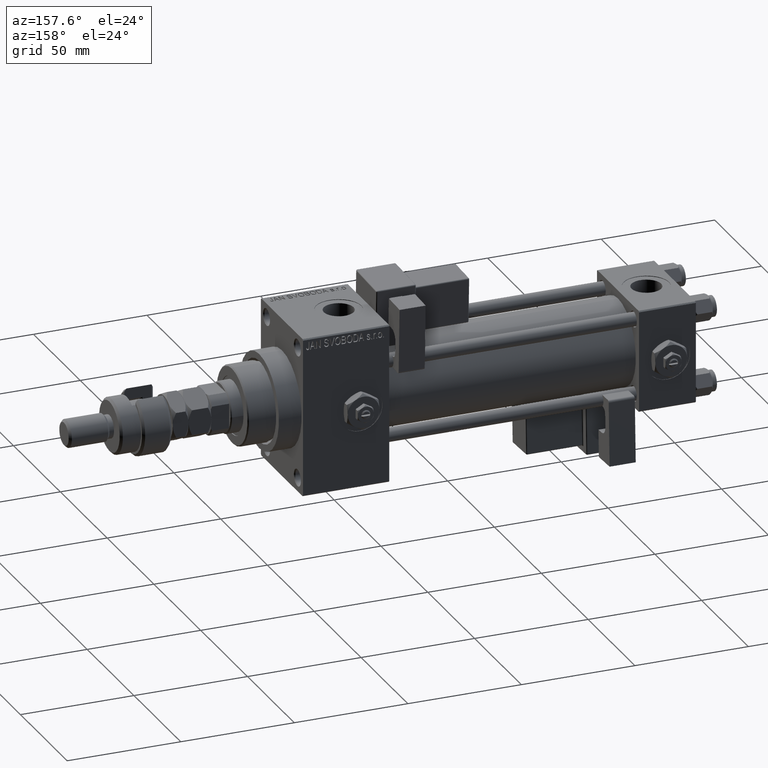
[diagram: clean part render]
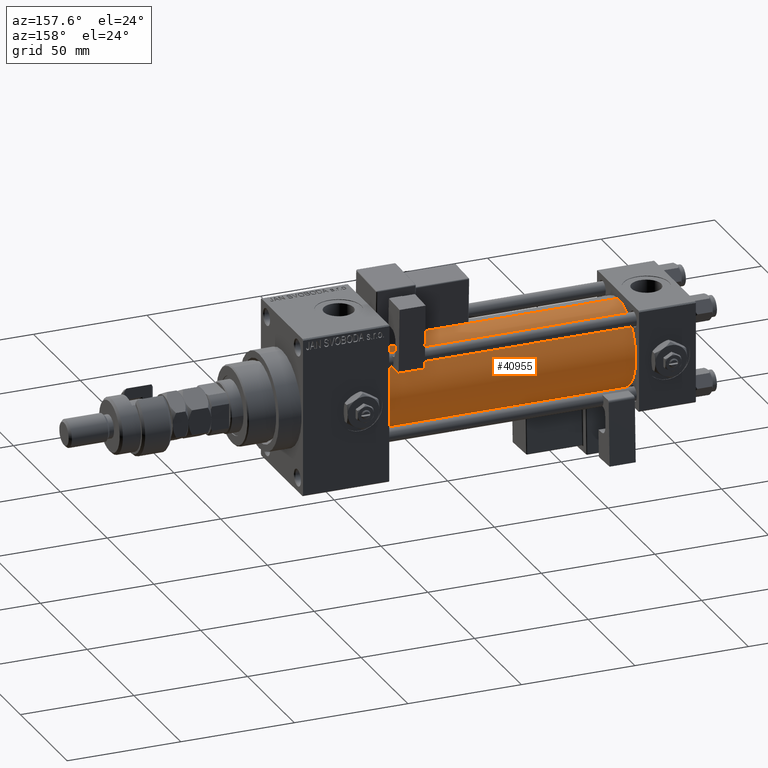
[diagram: same view with one face highlighted and labeled with its STEP entity id]
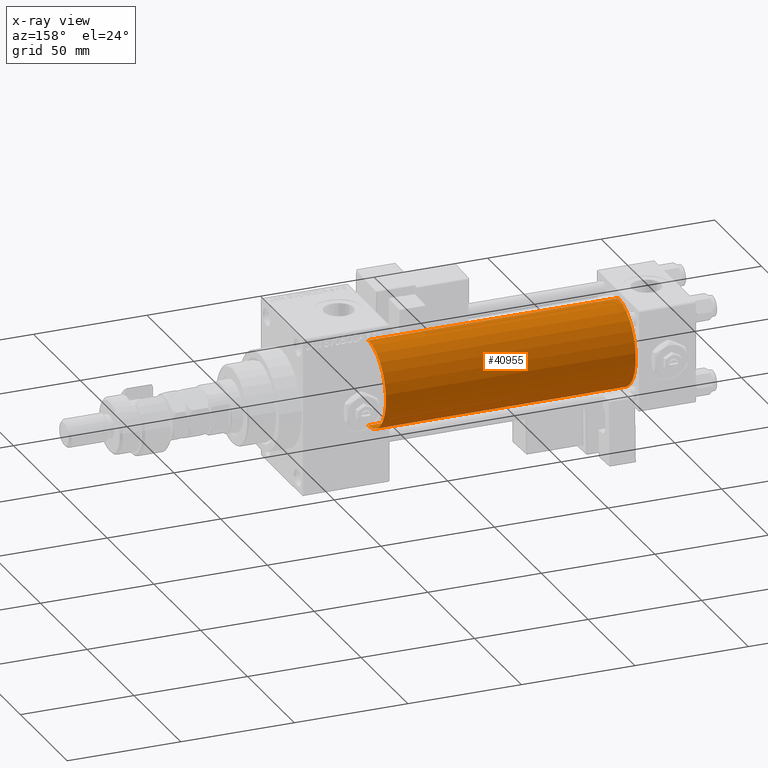
[diagram: x-ray of the same camera — body ghosted, the highlighted face saturated]
A machine part, auxiliary view. The second image highlights one B-rep face of the part: STEP entity #40955.
The next image is the same camera in x-ray: the body ghosted, the highlighted face saturated — about 0% of this face is hidden behind the body in this view.
In plain terms, the highlighted cylindrical surface (partial cylindrical patch) has radius 19 mm, axis along (-1, -0, -0).
Its self-contained STEP definition (entity closure, byte-faithful):
#667 = CARTESIAN_POINT ( 'NONE',  ( 135.0000000000000000, -2.602085213965210642E-15, 0.000000000000000000 ) ) ;
#1106 = CARTESIAN_POINT ( 'NONE',  ( 135.0000000000000000, -2.752562955852396712E-16, -19.00000000000000000 ) ) ;
#3159 = ORIENTED_EDGE ( 'NONE', *, *, #11059, .T. ) ;
#4620 = ORIENTED_EDGE ( 'NONE', *, *, #16426, .F. ) ;
#11059 = EDGE_CURVE ( 'NONE', #13453, #36797, #46539, .T. ) ;
#12103 = VERTEX_POINT ( 'NONE', #21294 ) ;
#13453 = VERTEX_POINT ( 'NONE', #31712 ) ;
#16426 = EDGE_CURVE ( 'NONE', #49038, #12103, #18541, .T. ) ;
#17004 = DIRECTION ( 'NONE',  ( -1.000000000000000000, -0.000000000000000000, -0.000000000000000000 ) ) ;
#17848 = DIRECTION ( 'NONE',  ( -1.000000000000000000, -0.000000000000000000, -0.000000000000000000 ) ) ;
#18541 = CIRCLE ( 'NONE', #44840, 19.00000000000000000 ) ;
#19285 = CARTESIAN_POINT ( 'NONE',  ( 135.0000000000000000, -2.602085213965210642E-15, 0.000000000000000000 ) ) ;
#20458 = VECTOR ( 'NONE', #17848, 1000.000000000000000 ) ;
#21294 = CARTESIAN_POINT ( 'NONE',  ( 135.0000000000000000, -2.602085213965210642E-15, 19.00000000000000000 ) ) ;
#21331 = AXIS2_PLACEMENT_3D ( 'NONE', #667, #25111, #46249 ) ;
#25111 = DIRECTION ( 'NONE',  ( -1.000000000000000000, -0.000000000000000000, -0.000000000000000000 ) ) ;
#25378 = CYLINDRICAL_SURFACE ( 'NONE', #21331, 19.00000000000000000 ) ;
#25507 = CARTESIAN_POINT ( 'NONE',  ( 135.0000000000000000, -2.602085213965210642E-15, 19.00000000000000000 ) ) ;
#26724 = EDGE_CURVE ( 'NONE', #12103, #36797, #46382, .T. ) ;
#27098 = AXIS2_PLACEMENT_3D ( 'NONE', #28417, #45192, #27874 ) ;
#27874 = DIRECTION ( 'NONE',  ( 0.000000000000000000, 0.000000000000000000, 1.000000000000000000 ) ) ;
#28417 = CARTESIAN_POINT ( 'NONE',  ( 24.99999999999999289, -2.602085213965210642E-15, 0.000000000000000000 ) ) ;
#31712 = CARTESIAN_POINT ( 'NONE',  ( 24.99999999999999289, -2.752562955852396712E-16, -19.00000000000000000 ) ) ;
#33328 = FACE_OUTER_BOUND ( 'NONE', #34620, .T. ) ;
#34620 = EDGE_LOOP ( 'NONE', ( #4620, #48658, #3159, #43771 ) ) ;
#35254 = CARTESIAN_POINT ( 'NONE',  ( 24.99999999999999289, -2.602085213965210642E-15, 19.00000000000000000 ) ) ;
#36011 = DIRECTION ( 'NONE',  ( 1.000000000000000000, 0.000000000000000000, 0.000000000000000000 ) ) ;
#36797 = VERTEX_POINT ( 'NONE', #35254 ) ;
#40193 = CARTESIAN_POINT ( 'NONE',  ( 135.0000000000000000, -2.752562955852396712E-16, -19.00000000000000000 ) ) ;
#40670 = DIRECTION ( 'NONE',  ( 0.000000000000000000, 0.000000000000000000, -1.000000000000000000 ) ) ;
#40853 = VECTOR ( 'NONE', #17004, 1000.000000000000000 ) ;
#40955 = ADVANCED_FACE ( 'NONE', ( #33328 ), #25378, .T. ) ;
#42827 = LINE ( 'NONE', #1106, #20458 ) ;
#43771 = ORIENTED_EDGE ( 'NONE', *, *, #26724, .F. ) ;
#44840 = AXIS2_PLACEMENT_3D ( 'NONE', #19285, #36011, #40670 ) ;
#45192 = DIRECTION ( 'NONE',  ( 1.000000000000000000, -0.000000000000000000, 0.000000000000000000 ) ) ;
#46249 = DIRECTION ( 'NONE',  ( 0.000000000000000000, 0.000000000000000000, 1.000000000000000000 ) ) ;
#46382 = LINE ( 'NONE', #25507, #40853 ) ;
#46539 = CIRCLE ( 'NONE', #27098, 19.00000000000000000 ) ;
#47405 = EDGE_CURVE ( 'NONE', #49038, #13453, #42827, .T. ) ;
#48658 = ORIENTED_EDGE ( 'NONE', *, *, #47405, .T. ) ;
#49038 = VERTEX_POINT ( 'NONE', #40193 ) ;